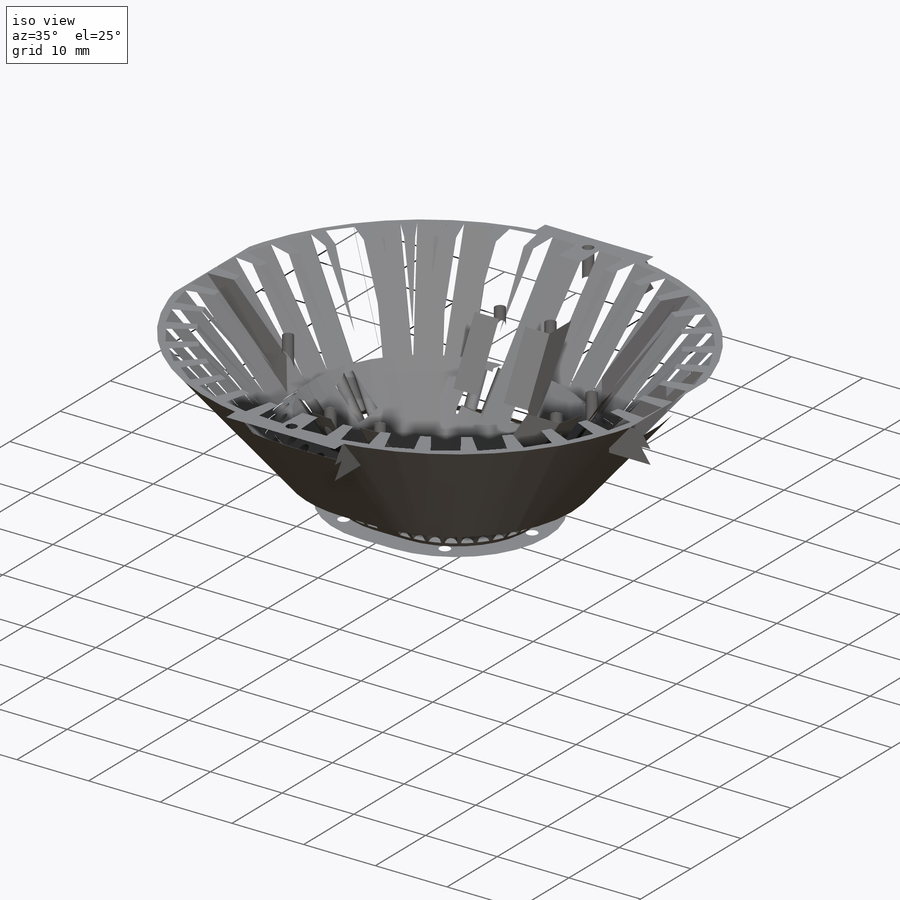
[diagram: iso view]
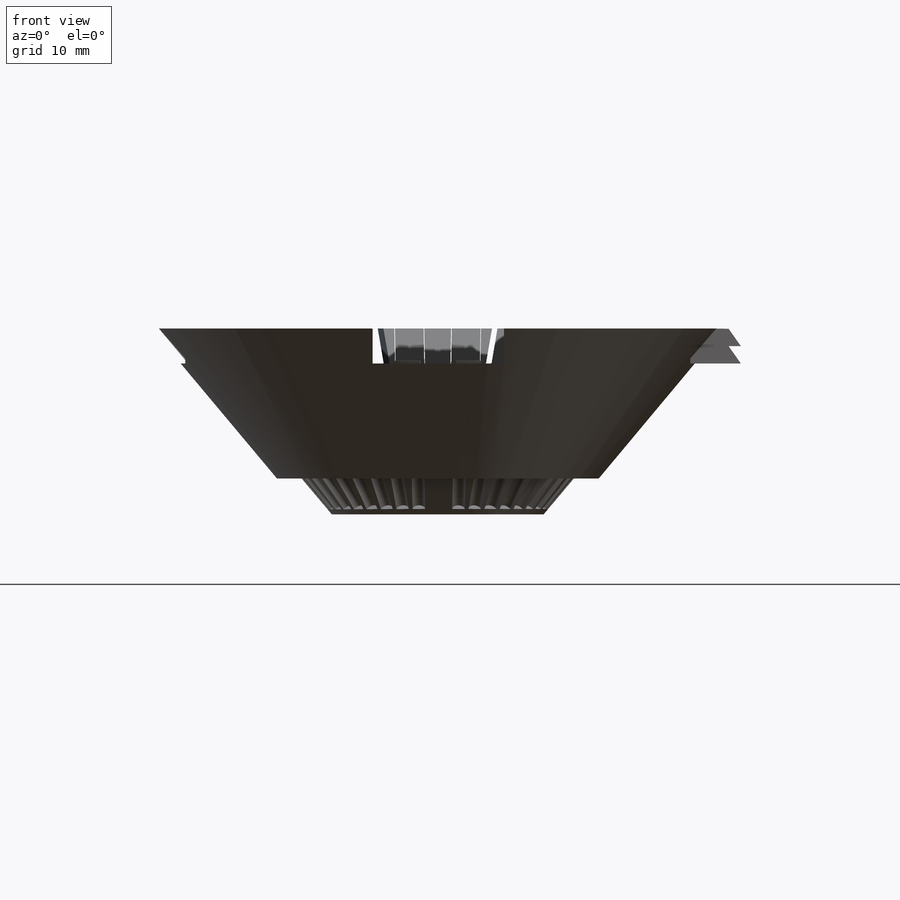
[diagram: front view]
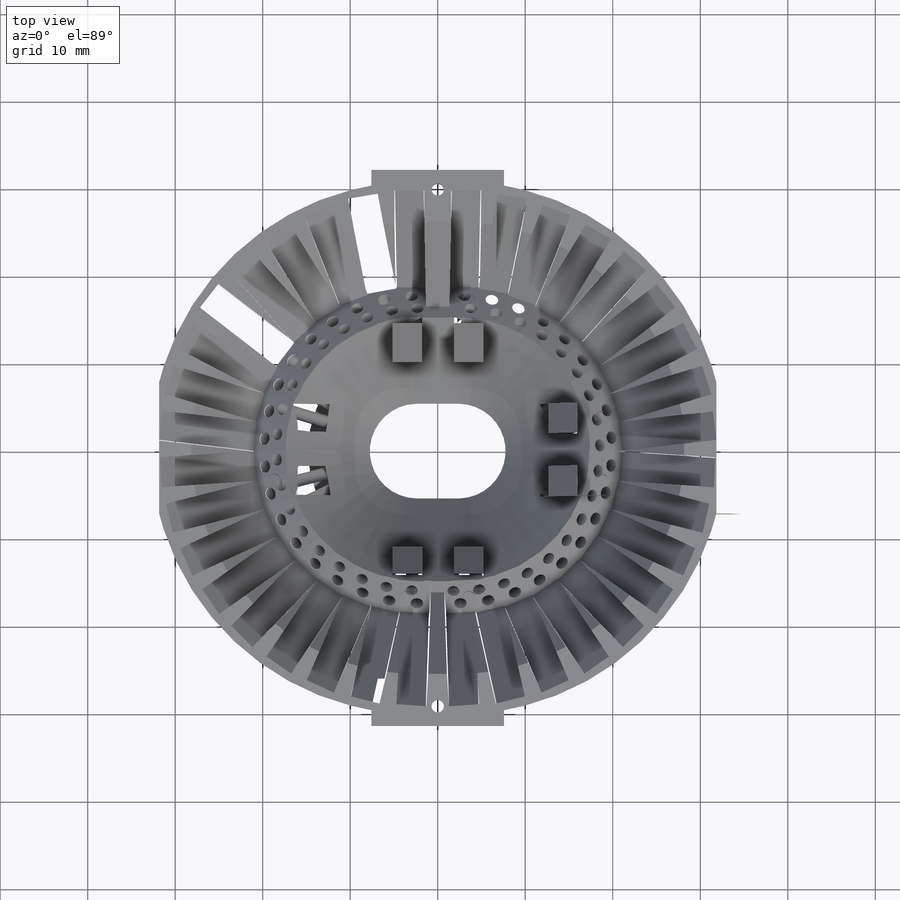
[diagram: top view]
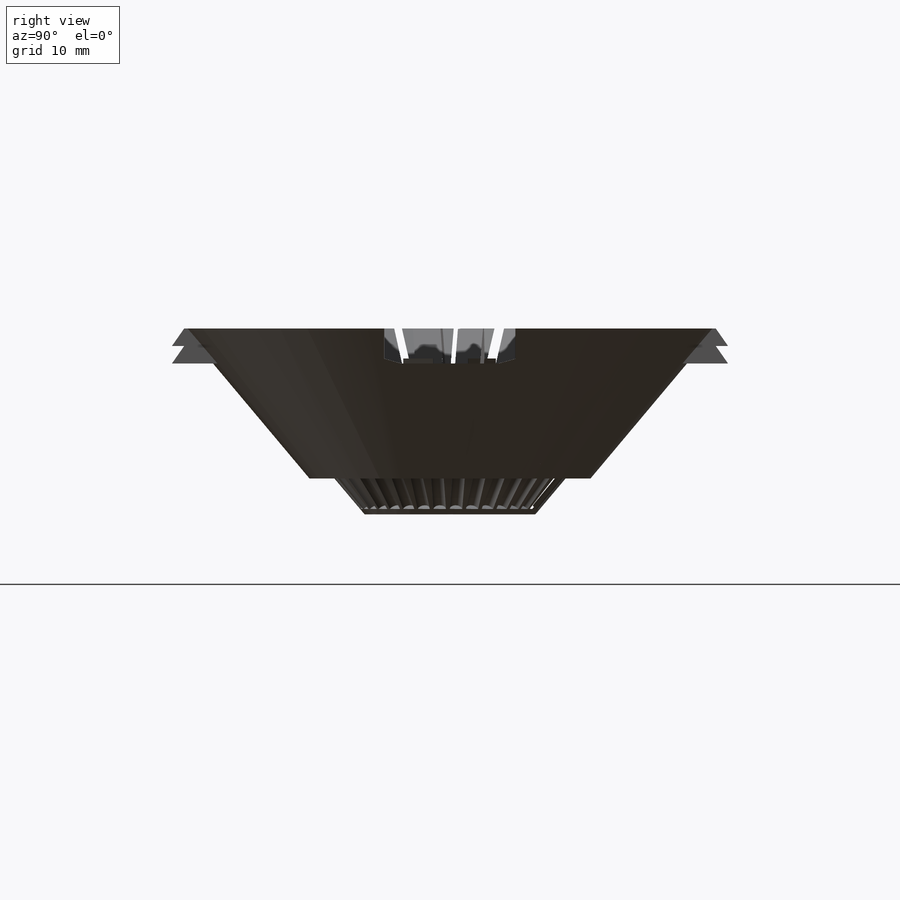
[diagram: right view]
SOLIDWORKS PART (.sldprt)
format: sldprt  version: not decoded by parser v0  size: 12,853,760 bytes
history: native  units: mm
features: sketch x398, cut_extrude x231, extrude x86, mirror x20, pattern_circular x12, plane x11, sweep x2, hole x2, material x1 + 1 further entry (+12 scaffold rows collapsed)
feature tree (776):
  scaffold x12  (default folders/planes/origin — collapsed)
  material  "Nylon 101"
  "Annotations"  RD1=0.9652mm RD2=1.27mm RD3=0.635mm RD4=1.27mm
  sketch  "Sketch1"  dims[c1.D1=4.5mm c1.D2=~3.830222mm c1.D3=~11.235125mm c2.D1=4.5mm c3.D1=90.0deg c4.D1=~13.425342mm c4.D2=2.65mm c4.D3=15.0mm c4.D4=5.725mm c5.D3=2.65mm c5.D1=3.81mm c5.D2=~21.261684mm c6.D2=~1.132287deg c7.D2=~2.443682mm c7.D3=3.19mm c8.D2=~21.007583mm c9.D2=~0.041173deg c10.D2=~21.007583mm c11.D2=~0.041173deg c12.D2=~15.012415mm c12.D3=~21.273071mm c12.D4=~7.217582mm c12.D5=~21.273072mm]
  sketch  "Drive Axis"  dims[c1.D1=50.0mm c2.D1=50.0deg]
  sketch  "Side Vertical 2"
  sketch  "Outer Wall"  dims[c1.D1=~38.302222mm c2.D1=140.0deg]
  sketch  "Inner Wall"  dims[D1=1.325mm]
  sketch  "Screw Axis"  dims[D1=1.75mm]
  sketch  "Drive Bottom"  dims[D1=6.5mm]
  sketch  "Bottom Fill Axis"  dims[D1=0.9mm]
  sketch  "Sketch11"
  sweep  "Hyperdrive"
  sketch  "3DSketch5"
  sketch  "Side Vertical Axis"
  sketch  "Middle Vertical Axis"  dims[c1.D1=43.5mm c2.D1=80.0deg]
  sketch  "Sketch35"  dims[D1=6.5mm]
  sketch  "3DSketch17"  dims[D1=2.24mm]
  sketch  "Sketch40"  dims[c1.D1=50.0mm c2.D1=50.0deg]
  sketch  "3DSketch18"
  sketch  "Sketch41"  dims[D1=3.3mm D2=4.3mm D3=3.95mm]
  sketch  "Sketch34"  dims[D1=6.5mm]
  extrude  "Boss-Extrude4"  Depth=25mm
  pattern_circular  "CirPattern23"  Count=18 Angle=10.411765deg
  mirror  "Mirror16"
  sketch  "Sketch54"
  cut_extrude  "Mold Path2"  Depth=30.7086mm
  sketch  "Sketch56"
  cut_extrude  "Mold Path3"  Depth=30.7086mm
  sketch  "Sketch57"
  cut_extrude  "Mold Path4"  Depth=30.7086mm
  sketch  "Sketch58"
  cut_extrude  "Mold Path5"  Depth=30.7086mm
  sketch  "Sketch60"
  cut_extrude  "Mold Path6"  Depth=30.7086mm
  sketch  "Sketch62"
  cut_extrude  "Mold Path7"  Depth=30.7086mm
  sketch  "Sketch64"
  cut_extrude  "Mold Path8"  Depth=30.7086mm
  sketch  "Sketch65"
  cut_extrude  "Mold Path9"  Depth=30.7086mm
  sketch  "Sketch66"
  cut_extrude  "Mold Path10"  Depth=30.7086mm
  sketch  "Sketch67"
  cut_extrude  "Mold Path11"  Depth=30.7086mm
  sketch  "Sketch68"
  cut_extrude  "Mold Path12"  Depth=30.7086mm
  sketch  "Sketch69"
  cut_extrude  "Mold Path13"  Depth=30.7086mm
  sketch  "Sketch70"
  cut_extrude  "Mold Path14"  Depth=30.7086mm
  sketch  "Sketch71"
  cut_extrude  "Mold Path15"  Depth=30.7086mm
  sketch  "Sketch72"
  cut_extrude  "Mold Path16"  Depth=30.7086mm
  sketch  "Sketch73"
  cut_extrude  "Mold Path17"  Depth=30.7086mm
  sketch  "Sketch74"
  cut_extrude  "Mold Path18"  Depth=30.7086mm
  sketch  "Sketch75"
  cut_extrude  "Mold Path19"  Depth=30.7086mm
  sketch  "Sketch77"
  cut_extrude  "Mold Path20"  Depth=30.7086mm
  sketch  "Sketch78"
  cut_extrude  "Mold Path21"  Depth=30.7086mm
  sketch  "Sketch79"
  cut_extrude  "Mold Path22"  Depth=30.7086mm
  sketch  "Sketch80"
  cut_extrude  "Mold Path23"  Depth=30.7086mm
  sketch  "Sketch81"
  cut_extrude  "Mold Path24"  Depth=30.7086mm
  sketch  "Sketch95"
  cut_extrude  "Mold Path25"  Depth=30.7086mm
  sketch  "Sketch96"
  cut_extrude  "Mold Path26"  Depth=30.7086mm
  sketch  "Sketch97"
  cut_extrude  "Mold Path27"  Depth=30.7086mm
  sketch  "Sketch98"
  cut_extrude  "Mold Path28"  Depth=30.7086mm
  sketch  "Sketch99"
  cut_extrude  "Mold Path29"  Depth=30.7086mm
  sketch  "Sketch100"
  cut_extrude  "Mold Path30"  Depth=30.7086mm
  sketch  "Sketch101"
  cut_extrude  "Mold Path31"  Depth=30.7086mm
  sketch  "Sketch102"
  cut_extrude  "Mold Path32"  Depth=30.7086mm
  sketch  "Sketch103"
  cut_extrude  "Mold Path33"  Depth=30.7086mm
  sketch  "Sketch105"
  cut_extrude  "Mold Path34"  Depth=30.7086mm
  sketch  "Sketch107"
  cut_extrude  "Mold Path36"  Depth=30.7086mm
  sketch  "Sketch108"
  cut_extrude  "Mold Path37"  Depth=30.7086mm
  sketch  "Sketch109"
  cut_extrude  "Mold Path1"  Depth=30.7086mm
  sketch  "Sketch110"  dims[D1=1.45mm D2=4.3mm]
  sketch  "Sketch118"  dims[D1=1.27mm]
  sketch  "Sketch120"  dims[D1=0.94mm]
  sketch  "Sketch123"  dims[D1=1.397mm]
  sketch  "Sketch127"  dims[D1=1.0mm]
  hole  "Hole-Medium"  Diameter=20mm Depth=100mm
  sketch  "Sketch129"
  sketch  "Sketch128"  dims[c1.Hole Ø=20.0mm c1.Depth=100.0mm c1.Drill Angle=118.0deg c1.C.Sink Angle=90.0deg c1.C.Bore Ø=40.0mm c1.C.Bore Depth=20.0mm c1.Diameter=0.635mm c2.Depth=23.0mm c2.C-Bore Diameter=1.27mm c2.C-Bore Depth=15.0mm c2.Drill Angle=118.0deg]
  hole  "Hole-Medium mirrored"  Diameter=20mm Depth=100mm
  sketch  "Sketch131"
  sketch  "Sketch130"  dims[c1.Hole Ø=20.0mm c1.Depth=100.0mm c1.Drill Angle=118.0deg c1.C.Sink Angle=90.0deg c1.C.Bore Ø=40.0mm c1.C.Bore Depth=20.0mm c1.Diameter=0.635mm c2.Depth=23.0mm c2.C-Bore Diameter=1.27mm c2.C-Bore Depth=15.0mm c2.Drill Angle=118.0deg]
  cut_extrude  "Hole-Largest "  [1 undecoded]
  sketch  "Sketch132"  dims[c1.D2=1.45mm c1.D1=1.65mm c2.D2=1.35mm]
  cut_extrude  "Hole-Largest mirrored"  [1 undecoded]
  sketch  "Sketch137"  dims[D1=7.36mm D2=7.366mm]
  sketch  "Sketch139"  dims[D1=7.97mm]
  sketch  "Sketch141"  dims[c1.D1=~19.249668mm c2.D1=10.0deg]
  extrude  "Board holder"  Depth=18mm
  sketch  "Sketch142"
  mirror  "Mirror18"
  sketch  "Sketch144"  dims[D1=~103.066187mm]
  sketch  "3DSketch19"
  mirror  "Board holder mirrored"
  pattern_circular  "Hole-Medium Pattern"  Count=18 Angle=10.411765deg
  pattern_circular  "Board Holder pattern"  Count=2 Angle=90deg
  mirror  "Mirror28"
  mirror  "Mirror29"
  sketch  "Sketch164"  dims[D1=~0.692986mm]
  sketch  "Sketch242"  dims[c1.D1=4.5mm c1.D2=~3.830222mm c1.D3=~11.235125mm c2.D1=4.5mm c3.D1=90.0deg c4.D1=~13.425342mm c4.D2=2.65mm c4.D3=15.0mm c4.D4=5.725mm c5.D3=2.65mm c5.D1=~4.183574mm]
  sketch  "Sketch244"
  sketch  "Sketch267"
  sketch  "Sketch268"
  sketch  "Sketch274"  dims[D1=1.27mm]
  cut_extrude  "Cut-Extrude141"  Depth=15.0114mm
  sketch  "Sketch275"  dims[D1=1.27mm]
  cut_extrude  "Cut-Extrude142"  Depth=15.0114mm
  sketch  "Sketch276"  dims[D1=1.27mm]
  cut_extrude  "Cut-Extrude143"  Depth=15.0114mm
  sketch  "Sketch277"  dims[D1=1.27mm]
  cut_extrude  "Cut-Extrude144"  Depth=15.0114mm
  sketch  "Sketch278"  dims[D1=1.27mm]
  cut_extrude  "Cut-Extrude145"  Depth=15.0114mm
  sketch  "Sketch279"  dims[D1=1.27mm]
  cut_extrude  "Cut-Extrude146"  Depth=15.0114mm
  sketch  "Sketch281"  dims[D1=1.27mm]
  sketch  "Sketch282"
  sketch  "Sketch283"
  sketch  "Sketch284"
  cut_extrude  "Cut-Extrude151"  Depth=15.0114mm
  sketch  "Sketch285"  dims[D1=~0.156901mm]
  cut_extrude  "Cut-Extrude152"  Depth=15.0114mm
  sketch  "Sketch286"
  sketch  "Sketch287"  dims[D1=1.27mm]
  sketch  "Sketch313"  dims[D1=1.2954mm]
  cut_extrude  "Cut-Extrude179"  Depth=15.0114mm
  sketch  "Sketch314"  dims[D1=1.2954mm]
  cut_extrude  "Cut-Extrude180"  Depth=15.0114mm
  sketch  "Sketch315"  dims[D1=1.2954mm]
  cut_extrude  "Cut-Extrude181"  Depth=15.0114mm
  sketch  "Sketch316"  dims[D1=~0.713235mm]
  cut_extrude  "Cut-Extrude182"  Depth=15.0114mm
  sketch  "Sketch317"  dims[D1=1.2954mm]
  cut_extrude  "Cut-Extrude183"  Depth=15.0114mm
  sketch  "Sketch318"  dims[D1=1.2954mm]
  cut_extrude  "Cut-Extrude184"  Depth=15.0114mm
  sketch  "Sketch319"  dims[D1=~1.97503mm]
  cut_extrude  "Cut-Extrude185"  Depth=15.0114mm
  sketch  "Sketch320"  dims[D1=1.2954mm]
  cut_extrude  "Cut-Extrude186"  Depth=15.0114mm
  sweep  "Drive base"
  sketch  "Sketch172"  dims[D1=18.0mm]
  extrude  "Light Holder Right"  Depth=21.5mm
  plane  "Plane1"  Offset=39.886354mm
  sketch  "Sketch180"
  cut_extrude  "Cut-Extrude94"  [1 undecoded]
  sketch  "Sketch185"
  cut_extrude  "Cut-Extrude96"  [1 undecoded]
  sketch  "Sketch189"
  cut_extrude  "Cut-Extrude98"  [1 undecoded]
  sketch  "Sketch190"  dims[D1=18.0mm]
  extrude  "Light Holder Left"  Depth=21.5mm
  sketch  "Sketch191"
  sketch  "Sketch202"  dims[D1=6.0mm]
  extrude  "Light Holder Back"  Depth=21.5mm
  sketch  "Sketch203"  dims[D1=~0.151543mm]
  sketch  "Sketch205"
  sketch  "Sketch206"  dims[D1=~0.736854mm]
  cut_extrude  "Cut-Extrude112"  [1 undecoded]
  cut_extrude  "Cut-Extrude113"  [1 undecoded]
  sketch  "Sketch233"
  cut_extrude  "Cut-Extrude119"  [1 undecoded]
  sketch  "Sketch234"
  cut_extrude  "Cut-Extrude120"  [1 undecoded]
  sketch  "Sketch235"
  cut_extrude  "Cut-Extrude121"  [1 undecoded]
  sketch  "Sketch236"
  cut_extrude  "Cut-Extrude122"  Depth=2.5mm
  sketch  "Sketch237"  dims[D1=~0.921914mm]
  cut_extrude  "Cut-Extrude123"  Depth=2.5mm
  sketch  "Sketch240"  dims[D1=~0.76029mm]
  cut_extrude  "Cut-Extrude127"  Depth=2.5mm
  plane  "Plane2"
  sketch  "Sketch262"
  sketch  "Sketch407"
  sketch  "Sketch382"  dims[D1=10.922mm D2=10.922mm]
  sketch  "Sketch383"  dims[D1=2.2225mm D2=2.2225mm]
  sketch  "Sketch385"
  sketch  "Sketch321"  dims[D1=1.2954mm]
  cut_extrude  "Cut-Extrude187"  Depth=15.0114mm
  sketch  "Sketch364"
  sketch  "Sketch370"  dims[D1=3.2512mm]
  sketch  "Sketch371"
  cut_extrude  "Cut-Extrude238"  Depth=4.445mm
  sketch  "Sketch376"  dims[D1=0.9652mm]
  cut_extrude  "Cut-Extrude240"  [1 undecoded]
  sketch  "Sketch377"  dims[D1=0.9652mm]
  cut_extrude  "Cut-Extrude241"  [1 undecoded]
  sketch  "Sketch399"
  sketch  "Sketch400"  dims[D1=0.635mm]
  sketch  "Sketch444"
  sketch  "Sketch445"
  sketch  "Sketch446"
  sketch  "Sketch447"
  sketch  "Sketch451"
  sketch  "Sketch455"
  sketch  "Sketch458"  dims[D1=3.9751mm]
  sketch  "Sketch459"
  sketch  "Sketch460"  dims[D1=3.81mm]
  cut_extrude  "Cut-Extrude289"  Depth=20.96mm
  pattern_circular  "CirPattern56"  Count=18 Angle=177deg
  mirror  "Mirror30"
  sketch  "Sketch461"
  sketch  "Sketch465"
  extrude  "Boss-Extrude5"  Depth=2.03mm
  sketch  "Sketch466"
  extrude  "Boss-Extrude6"  Depth=2.03mm
  sketch  "Sketch467"
  sketch  "Sketch477"
  extrude  "Boss-Extrude7"  Depth=1.4mm
  sketch  "Sketch478"
  cut_extrude  "Cut-Extrude301"  [1 undecoded]
  sketch  "Sketch480"
  extrude  "Boss-Extrude8"  Depth=1.4mm
  sketch  "Sketch490"
  extrude  "Boss-Extrude9"  Depth=1.4mm
  sketch  "Sketch499"  dims[D1=4.0mm]
  sketch  "Sketch500"  dims[D1=4.0mm]
  sketch  "Sketch503"  dims[D1=1.4mm]
  extrude  "Boss-Extrude13"  Depth=4mm
  sketch  "Sketch508"
  extrude  "Boss-Extrude16"  Depth=5.08mm
  sketch  "Sketch510"  dims[D1=2.0mm]
  cut_extrude  "Cut-Extrude322"  [1 undecoded]
  sketch  "Sketch523"  dims[D1=1.4mm]
  extrude  "Boss-Extrude17"  Depth=4mm
  sketch  "Sketch524"
  extrude  "Boss-Extrude19"  Depth=4.826mm
  sketch  "Sketch525"
  cut_extrude  "Cut-Extrude333"  [1 undecoded]
  sketch  "Sketch526"
  cut_extrude  "Cut-Extrude334"  [1 undecoded]
  sketch  "Sketch527"
  cut_extrude  "Cut-Extrude335"  [1 undecoded]
  sketch  "Sketch528"
  cut_extrude  "Cut-Extrude336"  [1 undecoded]
  sketch  "Sketch532"  dims[D1=1.4mm]
  extrude  "Boss-Extrude21"  Depth=4mm
  sketch  "Sketch533"
  extrude  "Boss-Extrude22"  Depth=5.08mm
  sketch  "Sketch538"
  cut_extrude  "Cut-Extrude337"  [1 undecoded]
  cut_extrude  "Cut-Extrude338"  [1 undecoded]
  sketch  "Sketch540"
  sketch  "Sketch543"  dims[D1=5.33mm]
  cut_extrude  "Shortern Drive-Cut-Extrude341"  [1 undecoded]
  sketch  "Sketch557"  dims[D1=4.0mm]
  sketch  "Sketch563"
  mirror  "Mirror32"
  plane  "Plane3"
  sketch  "Sketch573"  dims[D1=3.0mm]
  cut_extrude  "Cut-Extrude361"  Depth=12.7mm
  sketch  "Sketch574"  dims[D1=3.0mm]
  cut_extrude  "Cut-Extrude362"  Depth=33.02mm
  sketch  "Sketch575"  dims[D1=2.0mm]
  cut_extrude  "Cut-Extrude365"  Depth=20.828mm
  sketch  "Sketch577"  dims[D1=4.0mm D2=3.9878mm]
  extrude  "Boss-Extrude23"  Depth=3mm
  sketch  "Sketch578"  dims[D1=1.4mm]
  cut_extrude  "Board Holder2-Cut-Extrude366"  Depth=8mm
  sketch  "Sketch579"  dims[D1=4.0mm D2=4.0mm]
  extrude  "Boss-Extrude24"  Depth=3mm
  sketch  "Sketch580"
  cut_extrude  "Cut-Extrude367"  Depth=8mm
  sketch  "Sketch581"  dims[D1=4.0mm]
  extrude  "Boss-Extrude25"  Depth=3mm
  sketch  "Sketch584"
  cut_extrude  "Board Holder4-Cut-Extrude368"  Depth=4mm
  sketch  "Sketch585"  dims[D1=4.0mm]
  extrude  "Boss-Extrude26"  Depth=3mm
  sketch  "Sketch586"
  cut_extrude  "Board Holder3-Cut-Extrude369"  Depth=4mm
  sketch  "Sketch587"  dims[D1=4.0mm]
  extrude  "Boss-Extrude28"  Depth=3mm
  sketch  "Sketch588"
  cut_extrude  "Cut-Extrude370"  Depth=4mm
  sketch  "Sketch589"  dims[D1=4.0mm]
  extrude  "Boss-Extrude29"  Depth=3mm
  sketch  "Sketch590"
  cut_extrude  "Cut-Extrude371"  Depth=4mm
  sketch  "Sketch591"  dims[D1=4.0mm]
  extrude  "Boss-Extrude30"  Depth=3mm
  sketch  "Sketch592"  dims[D1=4.0mm]
  extrude  "Boss-Extrude31"  Depth=3mm
  sketch  "Sketch593"
  cut_extrude  "Board Holder6-Cut-Extrude372"  Depth=4mm
  sketch  "Sketch594"
  cut_extrude  "Cut-Extrude373"  Depth=4mm
  sketch  "Sketch595"
  cut_extrude  "Board Holder5-Cut-Extrude374"  Depth=4mm
  sketch  "Sketch596"  dims[D1=4.0mm]
  cut_extrude  "Cut-Extrude376"  Depth=11.62mm
  sketch  "Sketch597"  dims[D1=3.0mm]
  cut_extrude  "Cut-Extrude377"  Depth=11.62mm
  sketch  "Sketch598"  dims[D1=3.0mm]
  cut_extrude  "Cut-Extrude379"  Depth=11.62mm
  sketch  "Sketch599"  dims[D1=3.0mm]
  cut_extrude  "Cut-Extrude380"  Depth=11.62mm
  sketch  "Sketch600"  dims[D1=1.0mm]
  cut_extrude  "Cut-Extrude381"  Depth=11.62mm
  sketch  "Sketch601"  dims[D1=1.0mm]
  cut_extrude  "Cut-Extrude382"  Depth=11.62mm
  sketch  "Sketch602"  dims[D1=1.0mm]
  cut_extrude  "Cut-Extrude384"  Depth=11.62mm
  sketch  "Sketch611"
  cut_extrude  "Cut-Extrude394"  Depth=11.25mm
  pattern_circular  "CirPattern59"  Count=18 Angle=177deg
  sketch  "Sketch612"
  cut_extrude  "Cut-Extrude395"  [1 undecoded]
  pattern_circular  "CirPattern60"  Count=18 Angle=177deg
  sketch  "Sketch615"
  cut_extrude  "Cut-Extrude396"  Depth=11.25mm
  sketch  "Sketch619"  dims[D1=2.0mm]
  sketch  "Sketch620"
  cut_extrude  "Cut-Extrude400"  Depth=12.54mm
  sketch  "Sketch621"
  extrude  "Boss-Extrude32"  Depth=3mm
  sketch  "Sketch622"
  extrude  "Board Holder2-Boss-Extrude33"  Depth=8.08mm
  sketch  "Sketch623"
  cut_extrude  "Cut-Extrude401"  Depth=3mm
  sketch  "Sketch625"
  extrude  "Boss-Extrude35"  Depth=3mm
  sketch  "Sketch626"
  extrude  "Board Holder1-Boss-Extrude36"  Depth=13.16mm
  sketch  "Sketch627"
  cut_extrude  "Cut-Extrude402"  Depth=3mm
  sketch  "Sketch628"
  cut_extrude  "Cut-Extrude403"  Depth=10.62mm
  sketch  "Sketch629"
  cut_extrude  "Cut-Extrude404"  Depth=8.08mm
  sketch  "Sketch630"
  cut_extrude  "Cut-Extrude405"  Depth=5.54mm
  sketch  "Sketch631"  dims[D1=1.27mm]
  cut_extrude  "Cut-Extrude406"  [1 undecoded]
  sketch  "Sketch636"  dims[D1=1.397mm]
  cut_extrude  "Cut-Extrude408"  [1 undecoded]
  pattern_circular  "CirPattern63"  Count=18 Angle=177deg
  sketch  "Sketch641"  dims[D1=1.397mm]
  cut_extrude  "Cut-Extrude415"  [1 undecoded]
  sketch  "Sketch642"  dims[D1=2.0mm]
  sketch  "Sketch643"
  cut_extrude  "Cut-Extrude416"  Depth=12mm
  sketch  "Sketch644"
  extrude  "Boss-Extrude37"  Depth=3mm
  sketch  "Sketch645"
  extrude  "Boss-Extrude38"  Depth=3mm
  sketch  "Sketch646"
  extrude  "Boss-Extrude39"  Depth=8.08mm
  sketch  "Sketch647"
  cut_extrude  "Cut-Extrude418"  Depth=3mm
  sketch  "Sketch648"
  extrude  "Boss-Extrude40"  Depth=8.08mm
  sketch  "Sketch649"
  cut_extrude  "Cut-Extrude419"  Depth=5.54mm
  sketch  "Sketch650"
  cut_extrude  "Cut-Extrude420"  Depth=10.62mm
  sketch  "Sketch651"
  cut_extrude  "Cut-Extrude421"  Depth=10.62mm
  sketch  "Sketch652"
  cut_extrude  "Cut-Extrude422"  Depth=10.62mm
  sketch  "Sketch653"  dims[D1=2.0mm]
  sketch  "Sketch654"
  extrude  "Boss-Extrude41"  Depth=3mm
  sketch  "Sketch656"
  extrude  "Boss-Extrude46"  Depth=3mm
  sketch  "Sketch660"
  extrude  "Boss-Extrude47"  Depth=8.08mm
  sketch  "Sketch661"
  cut_extrude  "Cut-Extrude424"  Depth=3mm
  sketch  "Sketch662"
  extrude  "Board Holder5-Boss-Extrude48"  Depth=8.08mm
  sketch  "Sketch663"
  cut_extrude  "Cut-Extrude426"  Depth=3mm
  cut_extrude  "Cut-Extrude428"  Depth=10.62mm
  sketch  "Sketch668"
  extrude  "Boss-Extrude51"  Depth=5.54mm
  sketch  "Sketch669"
  cut_extrude  "Cut-Extrude430"  Depth=3mm
  sketch  "Sketch670"
  extrude  "Boss-Extrude52"  Depth=3mm
  sketch  "Sketch671"
  cut_extrude  "Cut-Extrude431"  Depth=3mm
  sketch  "Sketch672"
  cut_extrude  "Cut-Extrude432"  Depth=10.62mm
  sketch  "Sketch673"
  extrude  "Boss-Extrude53"  Depth=3mm
  sketch  "Sketch674"
  extrude  "Boss-Extrude54"  Depth=3mm
  sketch  "Sketch675"
  extrude  "Board Holder3-Boss-Extrude55"  Depth=8.08mm
  sketch  "Sketch676"
  cut_extrude  "Cut-Extrude433"  Depth=3mm
  sketch  "Sketch677"
  extrude  "Board Holder4-Boss-Extrude56"  Depth=8.08mm
  sketch  "Sketch678"
  cut_extrude  "Cut-Extrude435"  Depth=3mm
  sketch  "Sketch679"
  cut_extrude  "Cut-Extrude436"  Depth=5.54mm
  sketch  "Sketch680"
  cut_extrude  "Cut-Extrude437"  Depth=5.54mm
  sketch  "Sketch681"
  cut_extrude  "Cut-Extrude438"  Depth=5.54mm
  sketch  "Sketch682"
  cut_extrude  "Cut-Extrude439"  Depth=5.54mm
  sketch  "Sketch683"
  cut_extrude  "Cut-Extrude440"  Depth=5.54mm
  sketch  "Sketch684"
  cut_extrude  "Cut-Extrude441"  Depth=5.54mm
  sketch  "Sketch689"  dims[D1=1.4478mm]
  cut_extrude  "Drive Base Bolt Hole1-Cut-Extrude445"  Depth=2.54mm
  pattern_circular  "Drive Base Bolt Hole1-CirPattern65"  Count=2 Angle=63deg
  pattern_circular  "Drive Base Bolt Hole1-CirPattern66"  Count=2 Angle=63deg
  mirror  "Drive Base Bolt Holes-Mirror45"
  sketch  "Sketch692"  dims[D1=1.397mm D2=1.397mm D3=~0.30337mm]
  cut_extrude  "Drive Base Design-Cut-Extrude446"  Depth=1.5mm
  mirror  "Drive Base Design-Mirror46"
  mirror  "Drive Base Design-Mirror47"
  pattern_circular  "Drive Bolt Holes-CirPattern67"  Count=18 Angle=177deg
  sketch  "Sketch698"  dims[D1=1.4478mm]
  cut_extrude  "Drive Bolt Holes-Cut-Extrude461"  Depth=11.25mm
  pattern_circular  "Drive Bolt Holes-CirPattern69"  Count=18 Angle=177deg
  sketch  "Sketch700"  dims[D1=1.397mm]
  cut_extrude  "Bolt Hole for Cover-Cut-Extrude462"  [1 undecoded]
  mirror  "Mirror48"
  sketch  "Sketch702"  dims[D1=~7.737982mm]
  extrude  "Teeth2"  Depth=4mm
  sketch  "Sketch703"  dims[D1=1.4mm]
  cut_extrude  "Teeth1-Cut-Extrude463"  [1 undecoded]
  sketch  "Sketch704"
  cut_extrude  "Teeth1-Cut-Extrude464"  [1 undecoded]
  sketch  "Sketch705"
  cut_extrude  "Teeth1-Cut-Extrude465"  [1 undecoded]
  mirror  "Teeth3 - Mirrored"
  sketch  "Sketch708"
  extrude  "Teeth2-Boss-Extrude59"  Depth=4mm
  sketch  "Sketch709"  dims[D1=2.0mm]
  cut_extrude  "Teeth2-Cut-Extrude467"  [1 undecoded]
  sketch  "Sketch710"
  cut_extrude  "Teeth2-Cut-Extrude468"  [1 undecoded]
  sketch  "Sketch711"
  cut_extrude  "Teeth2-Cut-Extrude469"  [1 undecoded]
  mirror  "Teeth4-Mirror50"
  sketch  "Sketch712"
  extrude  "Board Holder1-Boss-Extrude60"  Depth=4mm
  sketch  "Sketch713"
  cut_extrude  "Board Holder1-Cut-Extrude472"  Depth=4mm
  sketch  "Sketch714"
  extrude  "Board Holder2-Boss-Extrude61"  Depth=4mm
  sketch  "Sketch715"
  cut_extrude  "Board Holder2-Cut-Extrude474"  Depth=4mm
  sketch  "Sketch718"
  extrude  "Board Holder8-Boss-Extrude63"  Depth=4mm
  sketch  "Sketch719"
  extrude  "Board Holder7-Boss-Extrude64"  Depth=4mm
  sketch  "Sketch720"
  cut_extrude  "Board Holder8-Cut-Extrude476"  Depth=4mm
  sketch  "Sketch721"
  cut_extrude  "Board Holder7-Cut-Extrude478"  Depth=4mm
  sketch  "Sketch722"
  extrude  "Board Holder3-Boss-Extrude65"  Depth=4mm
  sketch  "Sketch723"
  extrude  "Board Holder4-Boss-Extrude66"  Depth=4mm
  sketch  "Sketch724"
  cut_extrude  "Board Holder3-Cut-Extrude480"  Depth=4mm
  sketch  "Sketch725"
  cut_extrude  "Board Holder4-Cut-Extrude482"  Depth=4mm
  sketch  "Sketch726"
  extrude  "Board Holder6-Boss-Extrude67"  Depth=4mm
  sketch  "Sketch727"
  extrude  "Board Holder7-Boss-Extrude68"  Depth=4mm
  sketch  "Sketch728"
  cut_extrude  "Cut-Extrude483"  Depth=4mm
  sketch  "Sketch729"
  cut_extrude  "Cut-Extrude485"  Depth=4mm
  sketch  "Board Holder4-Sketch730"
  sketch  "Board Holder4-Sketch734"
  sketch  "Sketch738"
  extrude  "Board Holder4-Boss-Extrude85"  Depth=0.23mm
  sketch  "Sketch739"
  extrude  "Board Holder3-Boss-Extrude86"  Depth=0.17mm
  sketch  "Sketch740"  dims[D1=0.23mm]
  extrude  "Board Holder3-Boss-Extrude87"  Depth=15.41mm
  sketch  "Sketch741"
  cut_extrude  "Board Holder3-Cut-Extrude486"  [1 undecoded]
  sketch  "Sketch742"  dims[D1=0.17mm]
  extrude  "Board Holder4-Boss-Extrude89"  Depth=15.47mm
  sketch  "Sketch743"
  cut_extrude  "Board Holder4-Cut-Extrude487"  Depth=1mm
  sketch  "Sketch748"  dims[D1=0.25mm]
  extrude  "Board Holder7-Boss-Extrude94"  Depth=14.64mm
  sketch  "Sketch752"  dims[D1=1.0mm]
  extrude  "Board Holder7-Boss-Extrude100"  Depth=3.4mm
  sketch  "Sketch757"  dims[D1=1.0mm]
  extrude  "Board Holder7-Boss-Extrude102"  Depth=3.4mm
  sketch  "Sketch758"
  sketch  "Sketch759"
  cut_extrude  "Board Holder7-Cut-Extrude497"  Depth=3.4mm
  cut_extrude  "Board Holder7-Cut-Extrude498"  Depth=11.02mm
  sketch  "Sketch760"
  cut_extrude  "Board Holder7-Cut-Extrude499"  Depth=4mm
  sketch  "Board Holder8-Sketch762"  dims[D1=1.0mm]
  sketch  "Sketch765"  dims[D1=0.17mm]
  extrude  "Board Holder8-Boss-Extrude112"  Depth=15.24mm
  sketch  "Board Holder8-Sketch767"  dims[D1=1.0mm]
  sketch  "Sketch768"
  extrude  "Board Holder8-Boss-Extrude114"  Depth=3.4mm
  sketch  "Sketch770"
  cut_extrude  "Board Holder8-Cut-Extrude501"  Depth=16.1mm
  sketch  "Sketch773"
  sketch  "Sketch774"
  cut_extrude  "Board Holder8-Cut-Extrude503"  Depth=3.4mm
  sketch  "Sketch775"  dims[D1=1.5mm]
  sketch  "Sketch776"
  cut_extrude  "Board Holder8-Cut-Extrude505"  Depth=4mm
  cut_extrude  "Board Holder3-4-7-8-Cut-Extrude506"  Depth=11.62mm
  sketch  "Sketch777"
  cut_extrude  "Board Holder3-Cut-Extrude507"  Depth=1.46mm
  sketch  "Sketch778"  dims[D1=0.23mm]
  extrude  "Board Holder2-Boss-Extrude116"  Depth=15.24mm
  sketch  "Sketch779"
  cut_extrude  "Cut-Extrude509"  Depth=0.508mm
  sketch  "Sketch781"
  extrude  "Board Holder5-Boss-Extrude119"  Depth=15.24mm
  sketch  "Sketch782"
  sketch  "Sketch783"  dims[D1=0.17mm]
  extrude  "Board Holder6-Boss-Extrude120"  Depth=15.24mm
  sketch  "Sketch784"
  cut_extrude  "Board Holder5-Cut-Extrude510"  [1 undecoded]
  sketch  "Sketch785"
  cut_extrude  "Board Holder6-Cut-Extrude511"  [1 undecoded]
  sketch  "Sketch786"  dims[D1=1.0mm]
  extrude  "Board Holder5-Boss-Extrude121"  Depth=3.42mm
  extrude  "Board Holder5-Boss-Extrude126"  [1 undecoded]
  sketch  "Sketch786<4>"  dims[D1=3.515mm]
  sketch  "Sketch793"
  cut_extrude  "Board Holder5-Cut-Extrude513"  Depth=6mm
  sketch  "Sketch794"  dims[D1=1.5mm]
  cut_extrude  "Board Holder1-Cut-Extrude514"  Depth=11.08mm
  sketch  "Sketch795"
  cut_extrude  "Mold Path19-Cut-Extrude515"  Depth=6mm
  sketch  "Sketch796"
  cut_extrude  "Mold Path18-Cut-Extrude516"  Depth=18.7mm
  sketch  "Sketch797"
  cut_extrude  "Mold Path17-Cut-Extrude517"  [1 undecoded]
  sketch  "Sketch799"
  cut_extrude  "Mold Path37-Cut-Extrude519"  Depth=6mm
  sketch  "Sketch801"
  cut_extrude  "Mold Path2-Cut-Extrude521"  Depth=6mm
  sketch  "Sketch802"
  cut_extrude  "Mold Path1-Cut-Extrude523"  Depth=6mm
  sketch  "Sketch804"
  cut_extrude  "Mold Path36-Cut-Extrude524"  Depth=6mm
  sketch  "Sketch805"
  cut_extrude  "Mold Path35-Cut-Extrude525"  Depth=6mm
  sketch  "Sketch809"
  cut_extrude  "Mold Path26-Cut-Extrude527"  Depth=6mm
  sketch  "Sketch810"
  cut_extrude  "Mold Path27Cut-Extrude528"  Depth=6mm
  sketch  "Sketch811"
  cut_extrude  "Mold Path28-Cut-Extrude530"  Depth=6mm
  sketch  "Sketch812"
  cut_extrude  "Mold Path29-Cut-Extrude531"  Depth=6mm
  sketch  "Sketch813"
  cut_extrude  "Mold Path10-Cut-Extrude532"  Depth=6mm
  sketch  "Sketch816"
  cut_extrude  "Mold Path9-Cut-Extrude533"  Depth=6mm
  sketch  "Sketch817"
  cut_extrude  "Mold Path8-Cut-Extrude534"  Depth=6mm
  sketch  "Sketch818"
  cut_extrude  "Mold Path11-Cut-Extrude535"  Depth=6mm
  sketch  "Board Holder5-Sketch819"
  sketch  "Board Holder5-Sketch820"
  sketch  "Board Holder6-Sketch825"
  sketch  "Board Holder6-Sketch826"
  sketch  "Sketch828"
  extrude  "Board Holder6-Boss-Extrude129"  [1 undecoded]
  sketch  "Sketch829"
  extrude  "Board Holder6-Boss-Extrude130"  Depth=2.83mm
  sketch  "Sketch830"
  extrude  "Board Holder6-Boss-Extrude131"  Depth=2.83mm
  sketch  "Sketch831"
  extrude  "Board Holder5-Boss-Extrude132"  Depth=2.83mm
  sketch  "Sketch833"
  extrude  "Board Holder5-Boss-Extrude135"  Depth=0.29mm
  sketch  "Sketch834"
  extrude  "Board Holder5-Boss-Extrude136"  [1 undecoded]
  sketch  "Sketch835"
  extrude  "Board Holder5-Boss-Extrude138"  Depth=0.29mm
  sketch  "Sketch836"
  extrude  "Board Holder5-Boss-Extrude140"  Depth=0.29mm
  sketch  "Sketch837"  dims[D1=0.23mm]
  extrude  "Board Holder6-Boss-Extrude143"  Depth=10.45mm
  sketch  "Sketch843"
  cut_extrude  "Board Holder6-Cut-Extrude538"  [1 undecoded]
  sketch  "Sketch844"
  extrude  "Board Holder6-Boss-Extrude144"  Depth=3.81mm
  pattern_circular  "CirPattern64"  Count=18 Angle=177deg
  sketch  "Sketch845"
  cut_extrude  "Cut-Extrude539"  [1 undecoded]
  sketch  "Sketch852"  dims[D1=1.4mm]
  cut_extrude  "Board Holder6-Cut-Extrude547"  Depth=3.81mm
  sketch  "Board Holder1 Hole-Sketch853"
  sketch  "Board Holder2 Hole-Sketch854"
  sketch  "Sketch858"
  extrude  "Board Holder1-Boss-Extrude147"  Depth=0.23mm
  sketch  "Sketch860"
  extrude  "Board Holder2-Boss-Extrude150"  Depth=3.36mm
  sketch  "Sketch861"  dims[D1=1.4mm]
  cut_extrude  "Board Holder2-Cut-Extrude548"  Depth=5.9mm
  sketch  "Sketch862"  dims[D1=1.4mm]
  cut_extrude  "Board Holder1-Cut-Extrude549"  Depth=5.9mm
  sketch  "Sketch863"
  extrude  "Board Holder6-Boss-Extrude151"  [1 undecoded]
  plane  "Plane4"
  sketch  "Sketch866"  dims[D1=0.6mm]
  cut_extrude  "Teeth4-Cut-Extrude550"  [1 undecoded]
  sketch  "Sketch868"
  cut_extrude  "Teeth4-Cut-Extrude551"  [1 undecoded]
  sketch  "Sketch869"  dims[D1=0.6mm]
  cut_extrude  "Teeth2-Cut-Extrude552"  [1 undecoded]
  sketch  "Sketch870"
  cut_extrude  "Teeth2-Cut-Extrude553"  [1 undecoded]
  sketch  "Sketch872"  dims[D1=0.0mm]
  extrude  "Teeth1"  Depth=4mm
  sketch  "Sketch873"  dims[D1=1.4mm]
  cut_extrude  "Teeth4-Cut-Extrude554"  [1 undecoded]
  sketch  "Sketch874"
  cut_extrude  "Teeth4-Cut-Extrude555"  [1 undecoded]
  mirror  "Teeth2-Mirrored"
  sketch  "Sketch877"  dims[D1=1.4mm]
  cut_extrude  "Bolt Hole for Cover-Cut-Extrude556"  [1 undecoded]
  mirror  "Bolt Hole for Cover-Mirror53"
  sketch  "Sketch878"  dims[c1.D1=~1.408706mm c1.D2=~2.430327mm c1.D3=1.3995mm c1.D4=~2.446314mm c2.D4=~125.159064deg c2.D5=2.0mm]
  extrude  "Boss-Extrude58"  Depth=14.985mm
  mirror  "Mirror49"
  sketch  "Sketch879"  dims[D1=1.3985mm]
  extrude  "Boss-Extrude59"  Depth=15.152mm
  mirror  "Mirror50"
  plane  "Plane5"
  plane  "Plane6"
  sketch  "Sketch882"
  cut_extrude  "Cut-Extrude540"  [1 undecoded]
  sketch  "Sketch883"
  cut_extrude  "Cut-Extrude541"  [1 undecoded]
  sketch  "Sketch888"  dims[D1=0.0705mm]
  cut_extrude  "Cut-Extrude545"  [1 undecoded]
  sketch  "Sketch889"  dims[D1=0.06mm]
  cut_extrude  "Cut-Extrude546"  [1 undecoded]
  sketch  "Sketch891"  dims[D1=0.06mm]
  cut_extrude  "Cut-Extrude547"  [1 undecoded]
  plane  "Plane7"
  sketch  "Sketch894"  dims[D1=0.06mm]
  sketch  "Sketch895"  dims[D1=0.034mm]
  cut_extrude  "Cut-Extrude550"  [1 undecoded]
  plane  "Plane8"
  sketch  "Sketch897"  dims[D1=0.06mm]
  cut_extrude  "Cut-Extrude551"  [1 undecoded]
  sketch  "Sketch898"  dims[D1=0.06mm]
  cut_extrude  "Cut-Extrude552"  [1 undecoded]
  sketch  "Sketch899"  dims[D1=0.006mm]
  cut_extrude  "Cut-Extrude554"  [1 undecoded]
  sketch  "Sketch900"  dims[D1=0.071mm]
  sketch  "Sketch901"  dims[D1=0.071mm]
  cut_extrude  "Cut-Extrude557"  [1 undecoded]
  sketch  "Sketch902"  dims[D1=0.06mm]
  cut_extrude  "Cut-Extrude558"  [1 undecoded]
  sketch  "Sketch903"  dims[D1=0.07mm]
  cut_extrude  "Cut-Extrude559"  [1 undecoded]
  sketch  "Sketch904"  dims[D1=0.071mm]
  cut_extrude  "Cut-Extrude560"  [1 undecoded]
  sketch  "Sketch905"  dims[D1=0.06mm]
  cut_extrude  "Cut-Extrude561"  [1 undecoded]
  sketch  "Sketch906"  dims[D1=0.06mm]
  cut_extrude  "Cut-Extrude562"  [1 undecoded]
  sketch  "Sketch907"  dims[D1=0.06mm]
  cut_extrude  "Cut-Extrude563"  [1 undecoded]
  sketch  "Sketch908"  dims[D1=0.06mm]
  cut_extrude  "Cut-Extrude564"  [1 undecoded]
  sketch  "Sketch909"  dims[D1=0.065mm]
  cut_extrude  "Cut-Extrude565"  [1 undecoded]
  sketch  "Sketch910"  dims[D1=0.06mm]
  cut_extrude  "Cut-Extrude566"  [1 undecoded]
  sketch  "Sketch911"  dims[D1=0.06mm]
  cut_extrude  "Cut-Extrude567"  [1 undecoded]
  sketch  "Sketch912"  dims[D1=0.071mm]
  cut_extrude  "Cut-Extrude569"  [1 undecoded]
  sketch  "Sketch914"  dims[D1=0.06mm]
  cut_extrude  "Cut-Extrude570"  [1 undecoded]
  sketch  "Sketch915"  dims[D1=0.06mm]
  cut_extrude  "Cut-Extrude571"  [1 undecoded]
  sketch  "Sketch916"  dims[D1=0.06mm]
  cut_extrude  "Cut-Extrude572"  [1 undecoded]
  sketch  "Sketch918"  dims[D1=0.06mm]
  cut_extrude  "Cut-Extrude574"  [1 undecoded]
  sketch  "Sketch919"  dims[D1=0.06mm]
  cut_extrude  "Cut-Extrude576"  [1 undecoded]
  plane  "Plane11"
  sketch  "Sketch921"  dims[D1=0.06mm]
  cut_extrude  "Cut-Extrude577"  [1 undecoded]
  sketch  "Sketch922"  dims[D1=0.06mm]
  cut_extrude  "Cut-Extrude578"  [1 undecoded]
  plane  "Plane12"
  sketch  "Sketch924"  dims[D1=0.06mm]
  cut_extrude  "Cut-Extrude579"  [1 undecoded]
  sketch  "Sketch926"  dims[D1=0.06mm]
  cut_extrude  "Cut-Extrude580"  [1 undecoded]
  sketch  "Sketch927"  dims[D1=0.06mm]
  cut_extrude  "Cut-Extrude581"  [1 undecoded]
  sketch  "Sketch928"  dims[D1=0.06mm]
  cut_extrude  "Cut-Extrude582"  [1 undecoded]
  sketch  "Sketch930"  dims[D1=0.06mm]
  cut_extrude  "Cut-Extrude583"  [1 undecoded]
  sketch  "Sketch931"  dims[D1=0.06mm]
  cut_extrude  "Cut-Extrude584"  [1 undecoded]
  sketch  "Sketch932"  dims[D1=0.06mm]
  cut_extrude  "Cut-Extrude585"  [1 undecoded]
  plane  "Plane15"
  sketch  "Sketch934"  dims[D1=0.071mm]
  cut_extrude  "Cut-Extrude586"  [1 undecoded]
  sketch  "Sketch935"
  cut_extrude  "Cut-Extrude587"  Depth=2.54mm
  sketch  "Sketch936"
  extrude  "Boss-Extrude62"  Depth=4mm
  sketch  "Sketch937"
  extrude  "Boss-Extrude63"  Depth=2.516mm
  sketch  "Sketch939"
  extrude  "Boss-Extrude64"  Depth=4mm
  sketch  "Sketch940"
  extrude  "Boss-Extrude65"  Depth=4mm
  mirror  "Mirror51"
  sketch  "Sketch943"  dims[c1.D1=1.4478mm c1.D2=1.4478mm c1.D3=1.4478mm c1.D4=1.4478mm c1.D5=1.4478mm c1.D6=1.4478mm c2.D1=25.488mm c2.D2=10.98mm c2.D3=10.857mm c2.D4=10.857mm c2.D5=10.98mm c2.D6=4.7mm c2.D7=~5.718833mm]
  cut_extrude  "Cut-Extrude588"  [1 undecoded]
  sketch  "Sketch944"
  cut_extrude  "Cut-Extrude589"  [1 undecoded]
  sketch  "Sketch947"  dims[D1=1.27mm]
  cut_extrude  "Cut-Extrude590"  Depth=3mm
  mirror  "Mirror52"
  mirror  "Mirror53"
decode coverage: 407 of 751 modeling features carry decoded parameters; 1 rows unclassified (native names shown)
note: ~ marks probable driven/reference dimensions
note: 87 parameter values undecoded
summary: no parameter record found for 87 features
note: suppression state not decoded; provenance and decode notes live in map.json
